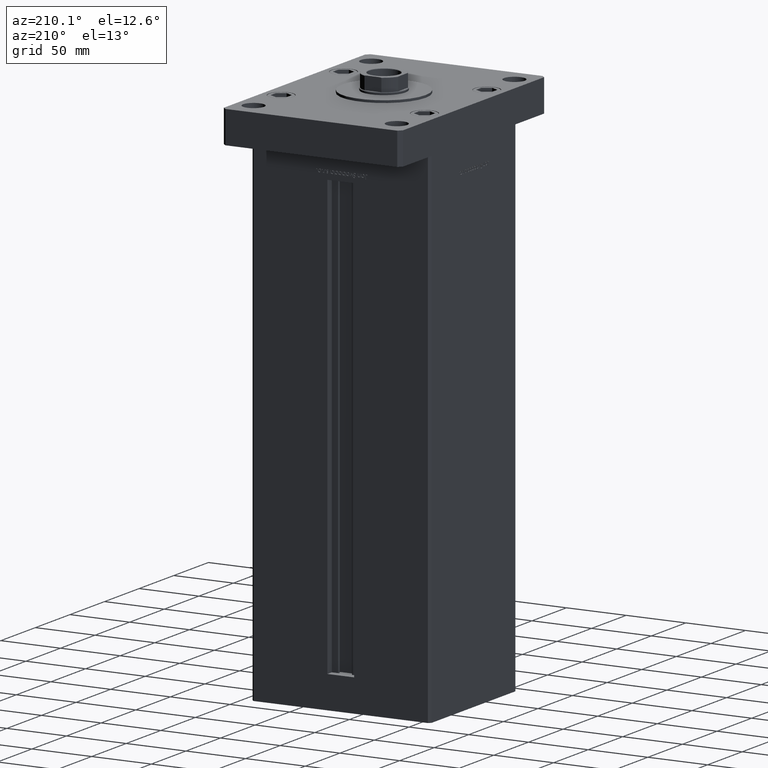
[diagram: clean part render]
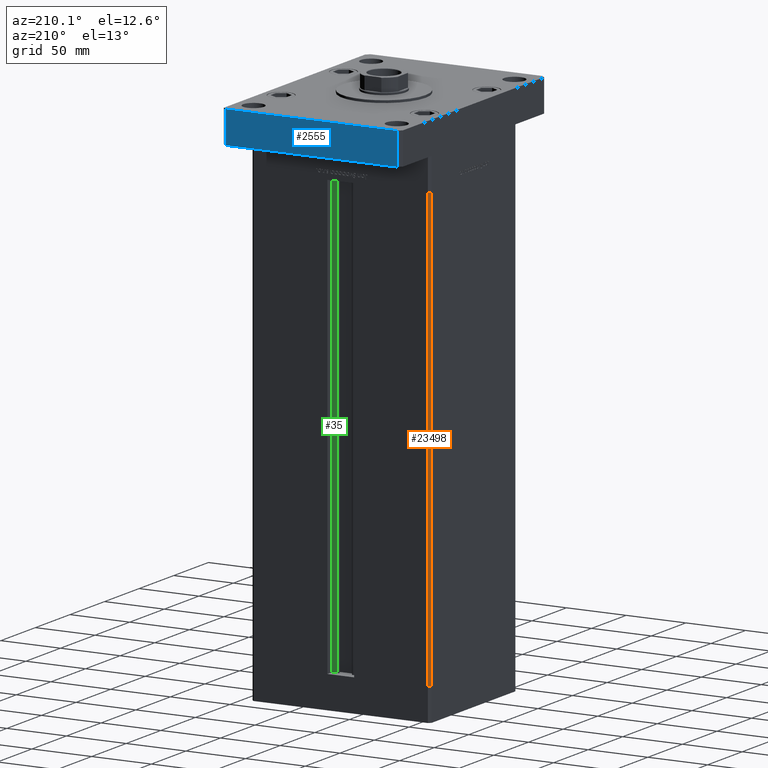
[diagram: same view with three faces highlighted in distinct colors, each labeled with its STEP entity id]
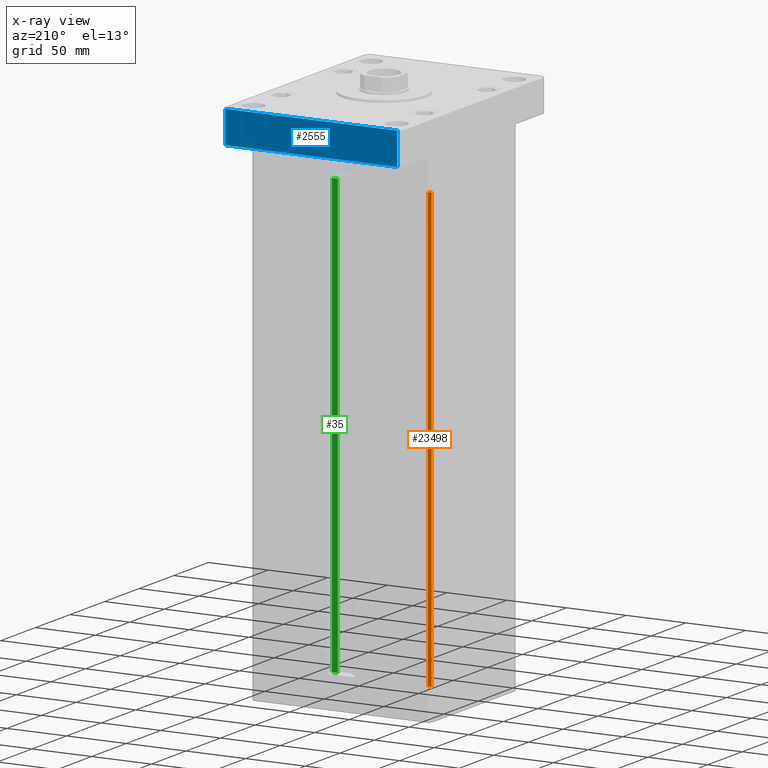
[diagram: x-ray of the same camera — body ghosted, the three highlighted faces saturated]
A machine part, auxiliary view with three faces highlighted in distinct colors.
The next image is the same camera in x-ray (body ghosted, the three faces saturated) — at least one of them is partly hidden behind the body in this view.
Their STEP definitions:

[orange] entity #23498 — the highlighted planar face has unit normal (0.7071, -0.7071, 0).
#3525 = CARTESIAN_POINT ( 'NONE',  ( -73.00000000000001421, 62.50000000000000000, 367.0000000000000000 ) ) ;
#5040 = EDGE_CURVE ( 'NONE', #10557, #48341, #36353, .T. ) ;
#6593 = ORIENTED_EDGE ( 'NONE', *, *, #50952, .F. ) ;
#7110 = CARTESIAN_POINT ( 'NONE',  ( -75.00000000000001421, 60.50000000000000000, 367.0000000000000000 ) ) ;
#9369 = DIRECTION ( 'NONE',  ( -0.7071067811865474617, -0.7071067811865474617, 0.000000000000000000 ) ) ;
#10557 = VERTEX_POINT ( 'NONE', #22383 ) ;
#13181 = VECTOR ( 'NONE', #9369, 1000.000000000000114 ) ;
#13451 = LINE ( 'NONE', #26335, #47366 ) ;
#13546 = VERTEX_POINT ( 'NONE', #49618 ) ;
#19292 = CARTESIAN_POINT ( 'NONE',  ( -73.00000000000001421, 62.50000000000000000, 367.0000000000000000 ) ) ;
#21277 = ORIENTED_EDGE ( 'NONE', *, *, #41095, .T. ) ;
#22011 = ORIENTED_EDGE ( 'NONE', *, *, #5040, .T. ) ;
#22383 = CARTESIAN_POINT ( 'NONE',  ( -73.00000000000001421, 62.50000000000000000, 367.0000000000000000 ) ) ;
#23498 = ADVANCED_FACE ( 'NONE', ( #31404 ), #47549, .F. ) ;
#26335 = CARTESIAN_POINT ( 'NONE',  ( -73.00000000000001421, 62.50000000000000000, 0.000000000000000000 ) ) ;
#28286 = DIRECTION ( 'NONE',  ( -0.000000000000000000, -0.000000000000000000, -1.000000000000000000 ) ) ;
#30218 = CARTESIAN_POINT ( 'NONE',  ( -73.00000000000001421, 62.50000000000000000, 0.000000000000000000 ) ) ;
#31404 = FACE_OUTER_BOUND ( 'NONE', #36182, .T. ) ;
#32216 = VECTOR ( 'NONE', #28286, 1000.000000000000000 ) ;
#32397 = DIRECTION ( 'NONE',  ( -0.000000000000000000, -0.000000000000000000, -1.000000000000000000 ) ) ;
#32664 = AXIS2_PLACEMENT_3D ( 'NONE', #19292, #47822, #39471 ) ;
#36164 = ORIENTED_EDGE ( 'NONE', *, *, #46540, .F. ) ;
#36182 = EDGE_LOOP ( 'NONE', ( #21277, #6593, #36164, #22011 ) ) ;
#36353 = LINE ( 'NONE', #3525, #32216 ) ;
#38731 = DIRECTION ( 'NONE',  ( -0.7071067811865474617, -0.7071067811865474617, 0.000000000000000000 ) ) ;
#39471 = DIRECTION ( 'NONE',  ( 0.7071067811865474617, 0.7071067811865474617, 0.000000000000000000 ) ) ;
#40204 = LINE ( 'NONE', #7110, #49357 ) ;
#41095 = EDGE_CURVE ( 'NONE', #48341, #13546, #13451, .T. ) ;
#42090 = CARTESIAN_POINT ( 'NONE',  ( -75.00000000000001421, 60.50000000000000000, 367.0000000000000000 ) ) ;
#43797 = VERTEX_POINT ( 'NONE', #42090 ) ;
#46255 = CARTESIAN_POINT ( 'NONE',  ( -73.00000000000001421, 62.50000000000000000, 367.0000000000000000 ) ) ;
#46540 = EDGE_CURVE ( 'NONE', #10557, #43797, #50289, .T. ) ;
#47366 = VECTOR ( 'NONE', #38731, 1000.000000000000114 ) ;
#47549 = PLANE ( 'NONE',  #32664 ) ;
#47822 = DIRECTION ( 'NONE',  ( 0.7071067811865475727, -0.7071067811865475727, 0.000000000000000000 ) ) ;
#48341 = VERTEX_POINT ( 'NONE', #30218 ) ;
#49357 = VECTOR ( 'NONE', #32397, 1000.000000000000000 ) ;
#49618 = CARTESIAN_POINT ( 'NONE',  ( -75.00000000000001421, 60.50000000000000000, 0.000000000000000000 ) ) ;
#50289 = LINE ( 'NONE', #46255, #13181 ) ;
#50952 = EDGE_CURVE ( 'NONE', #43797, #13546, #40204, .T. ) ;

[blue] entity #2555 — the highlighted planar face has unit normal (0, -1, 0).
#562 = LINE ( 'NONE', #832, #12633 ) ;
#832 = CARTESIAN_POINT ( 'NONE',  ( 72.00000000000004263, 105.0000000000000284, 27.00000000000000000 ) ) ;
#1143 = LINE ( 'NONE', #8697, #3118 ) ;
#2555 = ADVANCED_FACE ( 'NONE', ( #37863 ), #41911, .F. ) ;
#3118 = VECTOR ( 'NONE', #29680, 1000.000000000000000 ) ;
#4097 = VECTOR ( 'NONE', #41869, 1000.000000000000000 ) ;
#4730 = CARTESIAN_POINT ( 'NONE',  ( 72.00000000000004263, 105.0000000000000284, 0.000000000000000000 ) ) ;
#5301 = CARTESIAN_POINT ( 'NONE',  ( -72.00000000000002842, 105.0000000000000000, 27.00000000000000000 ) ) ;
#5718 = VECTOR ( 'NONE', #22574, 1000.000000000000000 ) ;
#6159 = LINE ( 'NONE', #6426, #5718 ) ;
#6426 = CARTESIAN_POINT ( 'NONE',  ( 72.00000000000004263, 105.0000000000000284, 27.00000000000000000 ) ) ;
#6455 = EDGE_LOOP ( 'NONE', ( #30407, #10432, #48032, #24665 ) ) ;
#8697 = CARTESIAN_POINT ( 'NONE',  ( -72.00000000000002842, 105.0000000000000000, 27.00000000000000000 ) ) ;
#8845 = CARTESIAN_POINT ( 'NONE',  ( 72.00000000000004263, 105.0000000000000284, 27.00000000000000000 ) ) ;
#9090 = EDGE_CURVE ( 'NONE', #43588, #9428, #6159, .T. ) ;
#9428 = VERTEX_POINT ( 'NONE', #5301 ) ;
#10432 = ORIENTED_EDGE ( 'NONE', *, *, #13556, .F. ) ;
#12633 = VECTOR ( 'NONE', #50358, 1000.000000000000000 ) ;
#13556 = EDGE_CURVE ( 'NONE', #9428, #22204, #1143, .T. ) ;
#14787 = EDGE_CURVE ( 'NONE', #43588, #36508, #562, .T. ) ;
#15888 = EDGE_CURVE ( 'NONE', #36508, #22204, #41607, .T. ) ;
#22204 = VERTEX_POINT ( 'NONE', #50588 ) ;
#22574 = DIRECTION ( 'NONE',  ( -1.000000000000000000, -1.927470528863118062E-16, 0.000000000000000000 ) ) ;
#24665 = ORIENTED_EDGE ( 'NONE', *, *, #14787, .T. ) ;
#26536 = CARTESIAN_POINT ( 'NONE',  ( 72.00000000000004263, 105.0000000000000284, 27.00000000000000000 ) ) ;
#29680 = DIRECTION ( 'NONE',  ( -0.000000000000000000, -0.000000000000000000, -1.000000000000000000 ) ) ;
#29793 = DIRECTION ( 'NONE',  ( 1.000000000000000000, 1.927470528863118309E-16, 0.000000000000000000 ) ) ;
#30407 = ORIENTED_EDGE ( 'NONE', *, *, #15888, .T. ) ;
#31308 = AXIS2_PLACEMENT_3D ( 'NONE', #26536, #50254, #29793 ) ;
#36508 = VERTEX_POINT ( 'NONE', #47922 ) ;
#37863 = FACE_OUTER_BOUND ( 'NONE', #6455, .T. ) ;
#41607 = LINE ( 'NONE', #4730, #4097 ) ;
#41869 = DIRECTION ( 'NONE',  ( -1.000000000000000000, -1.927470528863118062E-16, 0.000000000000000000 ) ) ;
#41911 = PLANE ( 'NONE',  #31308 ) ;
#43588 = VERTEX_POINT ( 'NONE', #8845 ) ;
#47922 = CARTESIAN_POINT ( 'NONE',  ( 72.00000000000004263, 105.0000000000000284, 0.000000000000000000 ) ) ;
#48032 = ORIENTED_EDGE ( 'NONE', *, *, #9090, .F. ) ;
#50254 = DIRECTION ( 'NONE',  ( 1.927470528863118309E-16, -1.000000000000000000, 0.000000000000000000 ) ) ;
#50358 = DIRECTION ( 'NONE',  ( -0.000000000000000000, -0.000000000000000000, -1.000000000000000000 ) ) ;
#50588 = CARTESIAN_POINT ( 'NONE',  ( -72.00000000000002842, 105.0000000000000000, 0.000000000000000000 ) ) ;

[green] entity #35 — the highlighted planar face has unit normal (0, -1, 0).
#35 = ADVANCED_FACE ( 'NONE', ( #10296 ), #27501, .F. ) ;
#1527 = CARTESIAN_POINT ( 'NONE',  ( 6.183333333334001480, 55.99999999999999289, 0.000000000000000000 ) ) ;
#3433 = EDGE_CURVE ( 'NONE', #38081, #27771, #50260, .T. ) ;
#8080 = EDGE_CURVE ( 'NONE', #13676, #41877, #43877, .T. ) ;
#9730 = LINE ( 'NONE', #49113, #44677 ) ;
#10163 = ORIENTED_EDGE ( 'NONE', *, *, #8080, .F. ) ;
#10296 = FACE_OUTER_BOUND ( 'NONE', #21432, .T. ) ;
#12869 = EDGE_CURVE ( 'NONE', #38081, #13676, #42192, .T. ) ;
#13676 = VERTEX_POINT ( 'NONE', #47699 ) ;
#15572 = ORIENTED_EDGE ( 'NONE', *, *, #37233, .F. ) ;
#16861 = VECTOR ( 'NONE', #20720, 1000.000000000000000 ) ;
#18066 = ORIENTED_EDGE ( 'NONE', *, *, #12869, .F. ) ;
#20163 = VECTOR ( 'NONE', #29800, 1000.000000000000000 ) ;
#20720 = DIRECTION ( 'NONE',  ( -0.000000000000000000, -0.000000000000000000, 1.000000000000000000 ) ) ;
#21432 = EDGE_LOOP ( 'NONE', ( #10163, #18066, #34974, #15572 ) ) ;
#23461 = AXIS2_PLACEMENT_3D ( 'NONE', #43133, #51473, #26709 ) ;
#26709 = DIRECTION ( 'NONE',  ( 0.000000000000000000, -0.000000000000000000, -1.000000000000000000 ) ) ;
#27501 = PLANE ( 'NONE',  #23461 ) ;
#27771 = VERTEX_POINT ( 'NONE', #50512 ) ;
#29800 = DIRECTION ( 'NONE',  ( -0.000000000000000000, -0.000000000000000000, 1.000000000000000000 ) ) ;
#33844 = DIRECTION ( 'NONE',  ( 1.000000000000000000, 0.000000000000000000, 0.000000000000000000 ) ) ;
#34218 = DIRECTION ( 'NONE',  ( -1.000000000000000000, 0.000000000000000000, 0.000000000000000000 ) ) ;
#34974 = ORIENTED_EDGE ( 'NONE', *, *, #3433, .T. ) ;
#37233 = EDGE_CURVE ( 'NONE', #41877, #27771, #9730, .T. ) ;
#37470 = VECTOR ( 'NONE', #33844, 1000.000000000000000 ) ;
#38081 = VERTEX_POINT ( 'NONE', #46494 ) ;
#40448 = CARTESIAN_POINT ( 'NONE',  ( 11.25000000000000178, 55.99999999999999289, 367.0000000000000000 ) ) ;
#41877 = VERTEX_POINT ( 'NONE', #40448 ) ;
#42192 = LINE ( 'NONE', #46502, #37470 ) ;
#43133 = CARTESIAN_POINT ( 'NONE',  ( 6.183333333334001480, 55.99999999999999289, 0.000000000000000000 ) ) ;
#43877 = LINE ( 'NONE', #45208, #16861 ) ;
#44677 = VECTOR ( 'NONE', #34218, 1000.000000000000000 ) ;
#45208 = CARTESIAN_POINT ( 'NONE',  ( 11.25000000000000178, 55.99999999999999289, 0.000000000000000000 ) ) ;
#46494 = CARTESIAN_POINT ( 'NONE',  ( 6.183333333334001480, 55.99999999999999289, 0.000000000000000000 ) ) ;
#46502 = CARTESIAN_POINT ( 'NONE',  ( 6.183333333334001480, 55.99999999999999289, 0.000000000000000000 ) ) ;
#47699 = CARTESIAN_POINT ( 'NONE',  ( 11.25000000000000178, 55.99999999999999289, 0.000000000000000000 ) ) ;
#49113 = CARTESIAN_POINT ( 'NONE',  ( 0.000000000000000000, 55.99999999999999289, 367.0000000000000000 ) ) ;
#50260 = LINE ( 'NONE', #1527, #20163 ) ;
#50512 = CARTESIAN_POINT ( 'NONE',  ( 6.183333333334001480, 55.99999999999999289, 367.0000000000000000 ) ) ;
#51473 = DIRECTION ( 'NONE',  ( 0.000000000000000000, -1.000000000000000000, 0.000000000000000000 ) ) ;